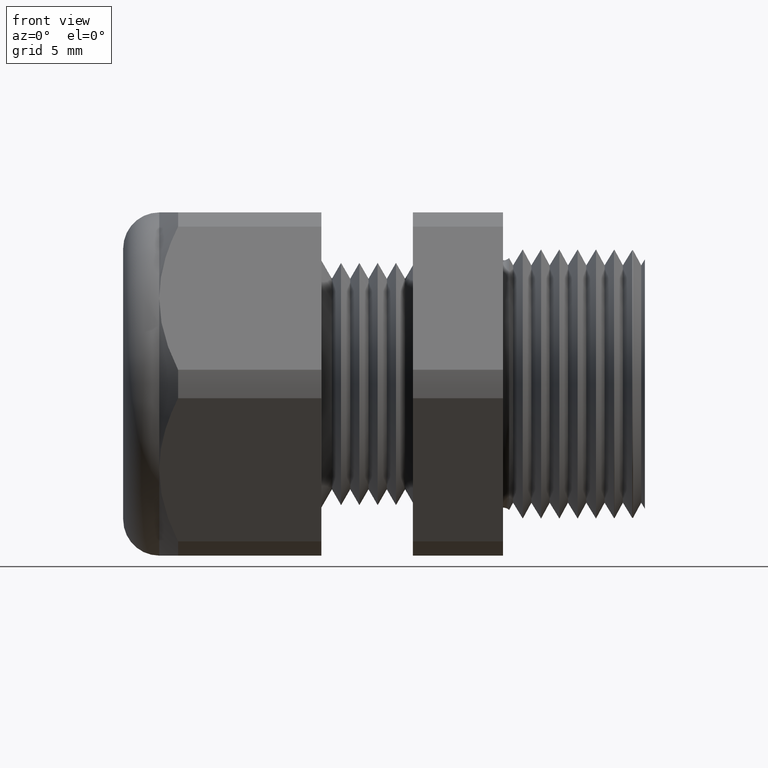
[diagram: clean part render]
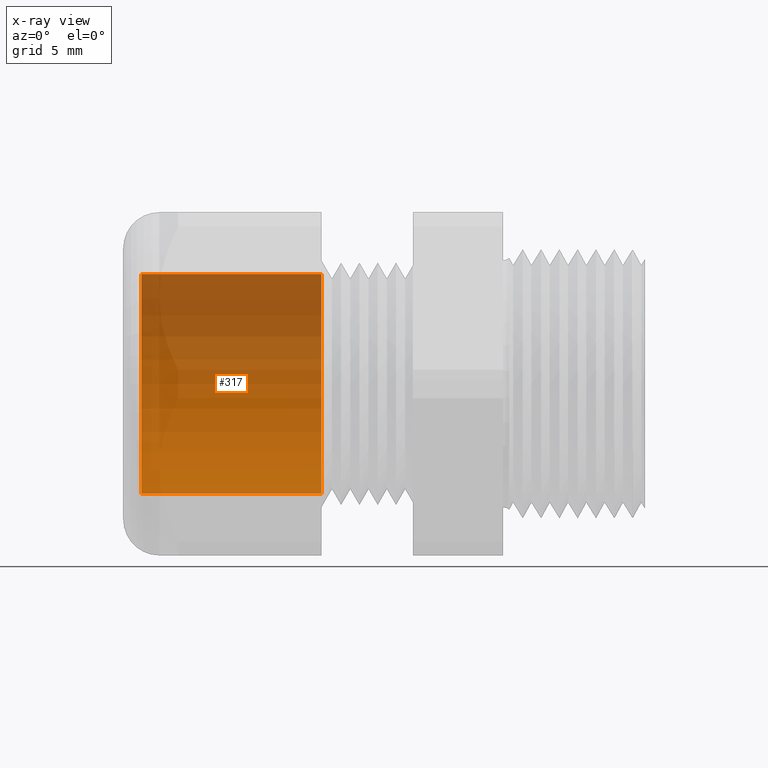
[diagram: x-ray — body ghosted, one internal face saturated and labeled with its STEP entity id]
A machine part, front view, then the same camera in x-ray: the body is ghosted and one INTERNAL B-rep face — a face not visible from any outside direction — is saturated and labeled: STEP entity #317.
In plain terms, the highlighted cylindrical surface (partial cylindrical patch) has radius 6.096 mm, axis along (1, 0, 0).
Its self-contained STEP definition (entity closure, byte-faithful):
#296 = VERTEX_POINT ( 'NONE', #3125 ) ;
#313 = EDGE_CURVE ( 'NONE', #314, #296, #2390, .T. ) ;
#314 = VERTEX_POINT ( 'NONE', #2385 ) ;
#317 = ADVANCED_FACE ( 'NONE', ( #2379 ), #2378, .T. ) ;
#318 = EDGE_LOOP ( 'NONE', ( #319, #320, #323, #666 ) ) ;
#319 = ORIENTED_EDGE ( 'NONE', *, *, #313, .T. ) ;
#320 = ORIENTED_EDGE ( 'NONE', *, *, #321, .T. ) ;
#321 = EDGE_CURVE ( 'NONE', #296, #322, #2373, .T. ) ;
#322 = VERTEX_POINT ( 'NONE', #2430 ) ;
#323 = ORIENTED_EDGE ( 'NONE', *, *, #324, .F. ) ;
#324 = EDGE_CURVE ( 'NONE', #665, #322, #2429, .T. ) ;
#665 = VERTEX_POINT ( 'NONE', #3091 ) ;
#666 = ORIENTED_EDGE ( 'NONE', *, *, #669, .F. ) ;
#669 = EDGE_CURVE ( 'NONE', #314, #665, #3090, .T. ) ;
#2373 = LINE ( 'NONE', #2433, #2432 ) ;
#2374 = DIRECTION ( 'NONE',  ( 0.0000000000000000000, 0.0000000000000000000, -1.000000000000000000 ) ) ;
#2375 = DIRECTION ( 'NONE',  ( 1.000000000000000000, 0.0000000000000000000, 0.0000000000000000000 ) ) ;
#2376 = CARTESIAN_POINT ( 'NONE',  ( 0.09602717987635048200, 0.0000000000000000000, 0.0000000000000000000 ) ) ;
#2377 = AXIS2_PLACEMENT_3D ( 'NONE', #2376, #2375, #2374 ) ;
#2378 = CYLINDRICAL_SURFACE ( 'NONE', #2377, 0.2399999999999999600 ) ;
#2379 = FACE_OUTER_BOUND ( 'NONE', #318, .T. ) ;
#2385 = CARTESIAN_POINT ( 'NONE',  ( -1.099999999999999900, 0.0000000000000000000, -0.2399999999999999600 ) ) ;
#2386 = DIRECTION ( 'NONE',  ( 0.0000000000000000000, 0.0000000000000000000, -1.000000000000000000 ) ) ;
#2387 = DIRECTION ( 'NONE',  ( 1.000000000000000000, 0.0000000000000000000, 0.0000000000000000000 ) ) ;
#2388 = CARTESIAN_POINT ( 'NONE',  ( -1.099999999999999900, 0.0000000000000000000, 0.0000000000000000000 ) ) ;
#2389 = AXIS2_PLACEMENT_3D ( 'NONE', #2388, #2387, #2386 ) ;
#2390 = CIRCLE ( 'NONE', #2389, 0.2399999999999999600 ) ;
#2425 = DIRECTION ( 'NONE',  ( 0.0000000000000000000, 0.0000000000000000000, -1.000000000000000000 ) ) ;
#2426 = DIRECTION ( 'NONE',  ( 1.000000000000000000, 0.0000000000000000000, 0.0000000000000000000 ) ) ;
#2427 = CARTESIAN_POINT ( 'NONE',  ( -0.7069291338582671700, 0.0000000000000000000, 0.0000000000000000000 ) ) ;
#2428 = AXIS2_PLACEMENT_3D ( 'NONE', #2427, #2426, #2425 ) ;
#2429 = CIRCLE ( 'NONE', #2428, 0.2399999999999999600 ) ;
#2430 = CARTESIAN_POINT ( 'NONE',  ( -0.7069291338582671700, 2.939152317953647400E-017, 0.2399999999999999600 ) ) ;
#2431 = DIRECTION ( 'NONE',  ( 1.000000000000000000, 0.0000000000000000000, 0.0000000000000000000 ) ) ;
#2432 = VECTOR ( 'NONE', #2431, 39.37007874015748100 ) ;
#2433 = CARTESIAN_POINT ( 'NONE',  ( 0.09602717987635048200, 2.939152317953647400E-017, 0.2399999999999999600 ) ) ;
#3087 = DIRECTION ( 'NONE',  ( 1.000000000000000000, 0.0000000000000000000, 0.0000000000000000000 ) ) ;
#3088 = VECTOR ( 'NONE', #3087, 39.37007874015748100 ) ;
#3089 = CARTESIAN_POINT ( 'NONE',  ( 0.09602717987635048200, 0.0000000000000000000, -0.2399999999999999600 ) ) ;
#3090 = LINE ( 'NONE', #3089, #3088 ) ;
#3091 = CARTESIAN_POINT ( 'NONE',  ( -0.7069291338582671700, 0.0000000000000000000, -0.2399999999999999600 ) ) ;
#3125 = CARTESIAN_POINT ( 'NONE',  ( -1.099999999999999900, 2.939152317953647400E-017, 0.2399999999999999600 ) ) ;